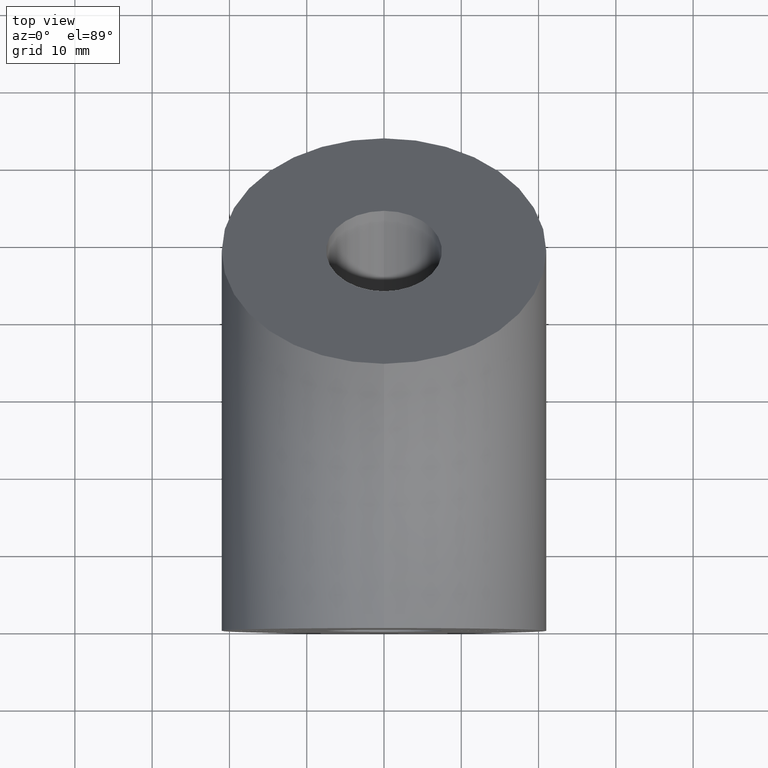
[diagram: clean part render]
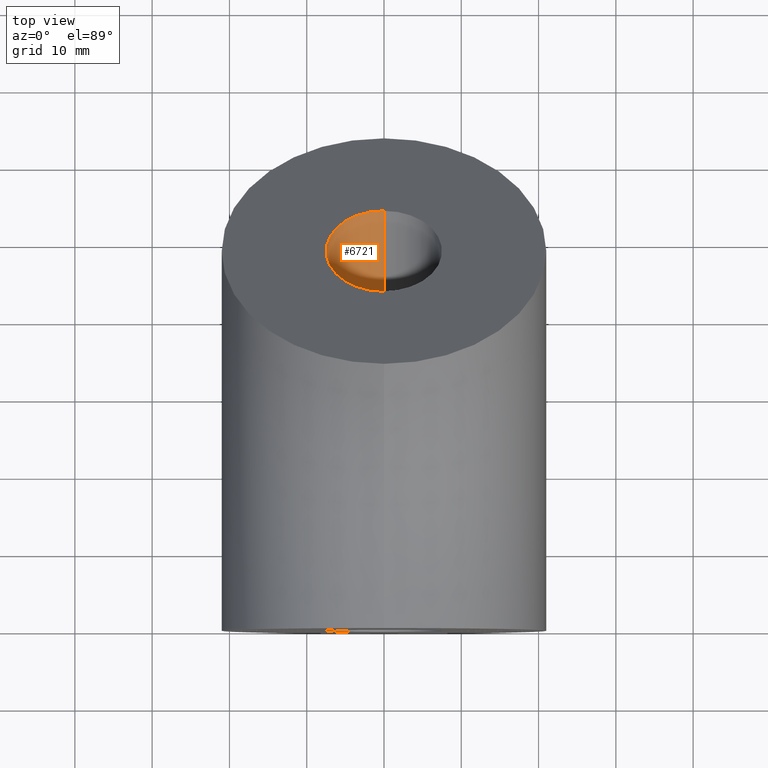
[diagram: same view with one face highlighted and labeled with its STEP entity id]
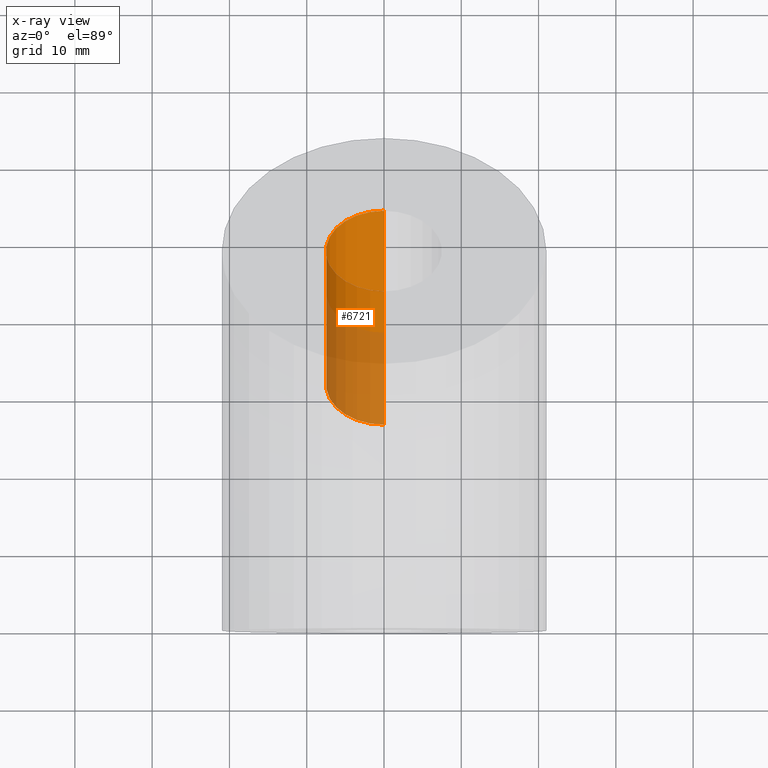
[diagram: x-ray of the same camera — body ghosted, the highlighted face saturated]
A machine part, top view. The second image highlights one B-rep face of the part: STEP entity #6721.
The next image is the same camera in x-ray: the body ghosted, the highlighted face saturated — about 47% of this face is hidden behind the body in this view.
In plain terms, the highlighted cylindrical surface (partial cylindrical patch) has radius 7.5 mm, axis along (-0, 0.7071, 0.7071).
Its self-contained STEP definition (entity closure, byte-faithful):
#907 = DIRECTION ( 'NONE',  ( -0.000000000000000000, 0.7071067811865512365, 0.7071067811865439090 ) ) ;
#1198 = VERTEX_POINT ( 'NONE', #7359 ) ;
#2471 = ORIENTED_EDGE ( 'NONE', *, *, #8859, .T. ) ;
#2866 = ORIENTED_EDGE ( 'NONE', *, *, #7084, .F. ) ;
#2907 = AXIS2_PLACEMENT_3D ( 'NONE', #8441, #6556, #7454 ) ;
#3130 = EDGE_CURVE ( 'NONE', #11001, #11010, #7497, .T. ) ;
#3481 = CARTESIAN_POINT ( 'NONE',  ( 9.184850993605144000E-16, 54.09366876077061193, 14.90633123922881964 ) ) ;
#3537 = CARTESIAN_POINT ( 'NONE',  ( 0.000000000000000000, 43.48706704297246262, 25.51293295702707908 ) ) ;
#3948 = AXIS2_PLACEMENT_3D ( 'NONE', #8712, #7199, #5577 ) ;
#4214 = CARTESIAN_POINT ( 'NONE',  ( 0.000000000000000000, 26.51650429449523116, 8.542370208550025268 ) ) ;
#4903 = VECTOR ( 'NONE', #10181, 999.9999999999998863 ) ;
#4920 = CARTESIAN_POINT ( 'NONE',  ( 9.184850993605144000E-16, 54.09366876077061193, 14.90633123922881786 ) ) ;
#4980 = DIRECTION ( 'NONE',  ( 0.000000000000000000, -0.7071067811865437980, 0.7071067811865512365 ) ) ;
#5087 = EDGE_LOOP ( 'NONE', ( #8404, #2471, #5876, #2866 ) ) ;
#5577 = DIRECTION ( 'NONE',  ( 0.000000000000000000, -0.7071067811865435759, 0.7071067811865514585 ) ) ;
#5646 = VECTOR ( 'NONE', #907, 999.9999999999998863 ) ;
#5876 = ORIENTED_EDGE ( 'NONE', *, *, #3130, .T. ) ;
#6556 = DIRECTION ( 'NONE',  ( -0.000000000000000000, 0.7071067811865512365, 0.7071067811865437980 ) ) ;
#6650 = CARTESIAN_POINT ( 'NONE',  ( 0.000000000000000000, 31.81980515339430227, 3.239069349650895546 ) ) ;
#6721 = ADVANCED_FACE ( 'NONE', ( #10774 ), #8135, .F. ) ;
#7084 = EDGE_CURVE ( 'NONE', #10878, #11010, #10907, .T. ) ;
#7099 = CARTESIAN_POINT ( 'NONE',  ( 0.000000000000000000, 43.48706704297246262, 25.51293295702707908 ) ) ;
#7199 = DIRECTION ( 'NONE',  ( -0.000000000000000000, 0.7071067811865512365, 0.7071067811865437980 ) ) ;
#7359 = CARTESIAN_POINT ( 'NONE',  ( 9.184850993605142028E-16, 37.12310601229337692, -2.064231509248234619 ) ) ;
#7454 = DIRECTION ( 'NONE',  ( 0.000000000000000000, -0.7071067811865437980, 0.7071067811865512365 ) ) ;
#7497 = CIRCLE ( 'NONE', #3948, 7.499999999999995559 ) ;
#7615 = DIRECTION ( 'NONE',  ( -0.000000000000000000, 0.7071067811865512365, 0.7071067811865437980 ) ) ;
#8135 = CYLINDRICAL_SURFACE ( 'NONE', #2907, 7.499999999999993783 ) ;
#8362 = LINE ( 'NONE', #4920, #4903 ) ;
#8404 = ORIENTED_EDGE ( 'NONE', *, *, #10818, .F. ) ;
#8441 = CARTESIAN_POINT ( 'NONE',  ( 0.000000000000000000, 48.79036790187153372, 20.20963209812794759 ) ) ;
#8712 = CARTESIAN_POINT ( 'NONE',  ( 0.000000000000000000, 48.79036790187153372, 20.20963209812794759 ) ) ;
#8859 = EDGE_CURVE ( 'NONE', #1198, #11001, #8362, .T. ) ;
#9700 = CIRCLE ( 'NONE', #11452, 7.499999999999993783 ) ;
#10181 = DIRECTION ( 'NONE',  ( -0.000000000000000000, 0.7071067811865512365, 0.7071067811865439090 ) ) ;
#10774 = FACE_OUTER_BOUND ( 'NONE', #5087, .T. ) ;
#10818 = EDGE_CURVE ( 'NONE', #1198, #10878, #9700, .T. ) ;
#10878 = VERTEX_POINT ( 'NONE', #4214 ) ;
#10907 = LINE ( 'NONE', #3537, #5646 ) ;
#11001 = VERTEX_POINT ( 'NONE', #3481 ) ;
#11010 = VERTEX_POINT ( 'NONE', #7099 ) ;
#11452 = AXIS2_PLACEMENT_3D ( 'NONE', #6650, #7615, #4980 ) ;